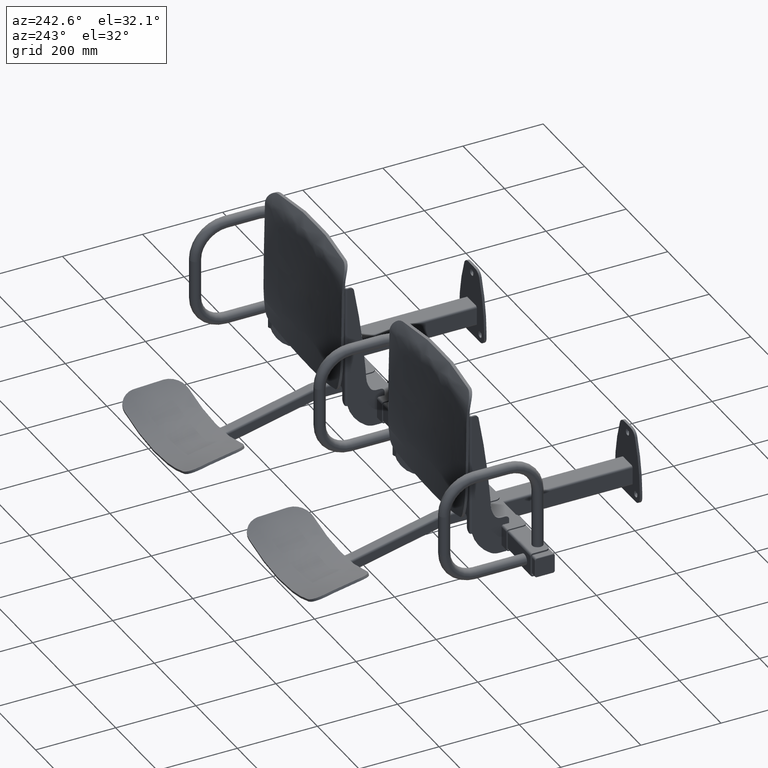
[diagram: clean part render]
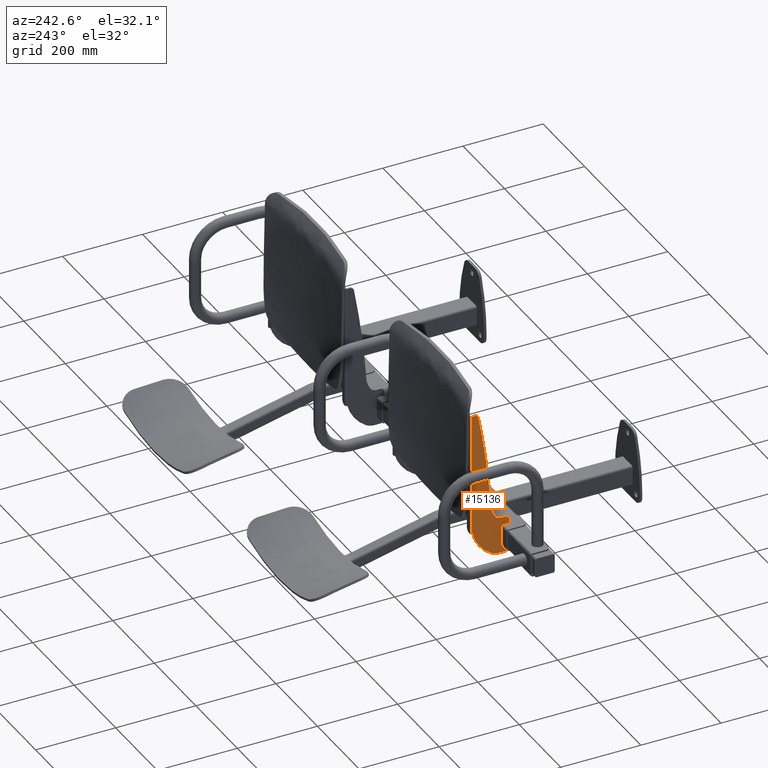
[diagram: same view with one face highlighted and labeled with its STEP entity id]
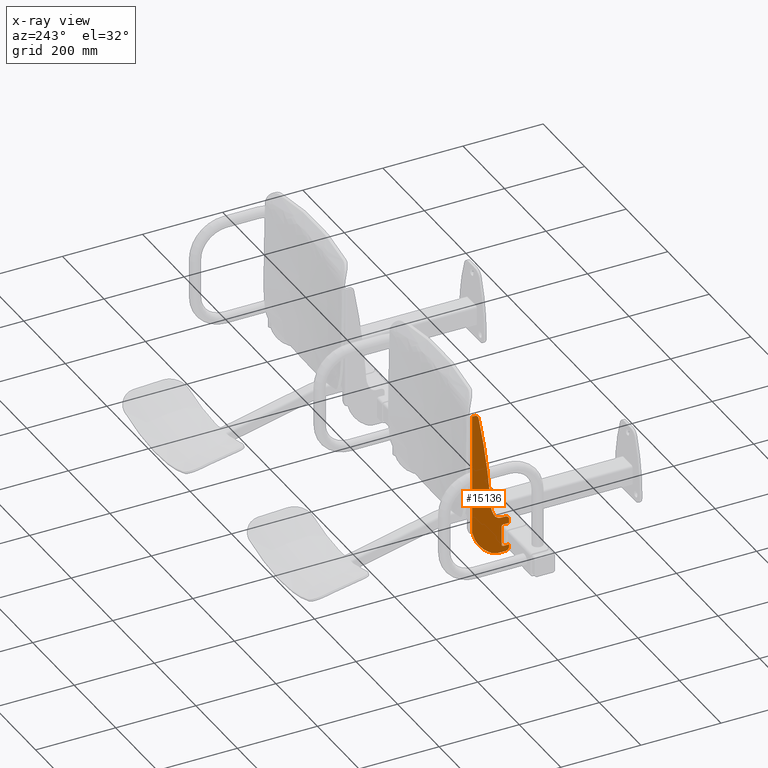
[diagram: x-ray of the same camera — body ghosted, the highlighted face saturated]
A machine part, auxiliary view. The second image highlights one B-rep face of the part: STEP entity #15136.
The next image is the same camera in x-ray: the body ghosted, the highlighted face saturated — about 0% of this face is hidden behind the body in this view.
In plain terms, the highlighted planar face has unit normal (-1, 0, 0).
Its self-contained STEP definition (entity closure, byte-faithful):
#186 = EDGE_LOOP ( 'NONE', ( #986, #988, #981, #984, #964, #966, #973, #975, #968, #971, #951, #953, #960, #962, #955, #958, #938, #940, #947, #949, #942 ) ) ;
#617 = VERTEX_POINT ( 'NONE', #13636 ) ;
#620 = VERTEX_POINT ( 'NONE', #13638 ) ;
#938 = ORIENTED_EDGE ( 'NONE', *, *, #1143, .T. ) ;
#940 = ORIENTED_EDGE ( 'NONE', *, *, #1146, .T. ) ;
#942 = ORIENTED_EDGE ( 'NONE', *, *, #1150, .T. ) ;
#947 = ORIENTED_EDGE ( 'NONE', *, *, #1092, .F. ) ;
#949 = ORIENTED_EDGE ( 'NONE', *, *, #1148, .T. ) ;
#951 = ORIENTED_EDGE ( 'NONE', *, *, #1129, .T. ) ;
#953 = ORIENTED_EDGE ( 'NONE', *, *, #1132, .T. ) ;
#955 = ORIENTED_EDGE ( 'NONE', *, *, #1139, .T. ) ;
#958 = ORIENTED_EDGE ( 'NONE', *, *, #1141, .T. ) ;
#960 = ORIENTED_EDGE ( 'NONE', *, *, #1134, .T. ) ;
#962 = ORIENTED_EDGE ( 'NONE', *, *, #1136, .T. ) ;
#964 = ORIENTED_EDGE ( 'NONE', *, *, #1115, .T. ) ;
#966 = ORIENTED_EDGE ( 'NONE', *, *, #1118, .T. ) ;
#968 = ORIENTED_EDGE ( 'NONE', *, *, #1125, .T. ) ;
#971 = ORIENTED_EDGE ( 'NONE', *, *, #1127, .T. ) ;
#973 = ORIENTED_EDGE ( 'NONE', *, *, #1120, .T. ) ;
#975 = ORIENTED_EDGE ( 'NONE', *, *, #1122, .T. ) ;
#981 = ORIENTED_EDGE ( 'NONE', *, *, #1111, .F. ) ;
#984 = ORIENTED_EDGE ( 'NONE', *, *, #1113, .T. ) ;
#986 = ORIENTED_EDGE ( 'NONE', *, *, #1106, .F. ) ;
#988 = ORIENTED_EDGE ( 'NONE', *, *, #1108, .T. ) ;
#1092 = EDGE_CURVE ( 'NONE', #7719, #7720, #15264, .T. ) ;
#1106 = EDGE_CURVE ( 'NONE', #7721, #7717, #15271, .T. ) ;
#1108 = EDGE_CURVE ( 'NONE', #7721, #7768, #15272, .T. ) ;
#1111 = EDGE_CURVE ( 'NONE', #7871, #7768, #15274, .T. ) ;
#1113 = EDGE_CURVE ( 'NONE', #7871, #617, #15276, .T. ) ;
#1115 = EDGE_CURVE ( 'NONE', #617, #620, #15280, .T. ) ;
#1118 = EDGE_CURVE ( 'NONE', #620, #7799, #15281, .T. ) ;
#1120 = EDGE_CURVE ( 'NONE', #7799, #7798, #15282, .T. ) ;
#1122 = EDGE_CURVE ( 'NONE', #7798, #7797, #15284, .T. ) ;
#1125 = EDGE_CURVE ( 'NONE', #7797, #7790, #15285, .T. ) ;
#1127 = EDGE_CURVE ( 'NONE', #7790, #7789, #15287, .T. ) ;
#1129 = EDGE_CURVE ( 'NONE', #7789, #7801, #15289, .T. ) ;
#1132 = EDGE_CURVE ( 'NONE', #7801, #7802, #15290, .T. ) ;
#1134 = EDGE_CURVE ( 'NONE', #7802, #7792, #15292, .T. ) ;
#1136 = EDGE_CURVE ( 'NONE', #7792, #7791, #15293, .T. ) ;
#1139 = EDGE_CURVE ( 'NONE', #7791, #7793, #15295, .T. ) ;
#1141 = EDGE_CURVE ( 'NONE', #7793, #7808, #15297, .T. ) ;
#1143 = EDGE_CURVE ( 'NONE', #7808, #7803, #15298, .T. ) ;
#1146 = EDGE_CURVE ( 'NONE', #7803, #7720, #15300, .T. ) ;
#1148 = EDGE_CURVE ( 'NONE', #7719, #7739, #15301, .T. ) ;
#1150 = EDGE_CURVE ( 'NONE', #7739, #7717, #15302, .T. ) ;
#1566 = AXIS2_PLACEMENT_3D ( 'NONE', #11931, #11932, #11933 ) ;
#1573 = AXIS2_PLACEMENT_3D ( 'NONE', #11952, #11953, #11954 ) ;
#1575 = AXIS2_PLACEMENT_3D ( 'NONE', #11957, #11958, #11959 ) ;
#1577 = AXIS2_PLACEMENT_3D ( 'NONE', #11962, #11963, #11964 ) ;
#1580 = AXIS2_PLACEMENT_3D ( 'NONE', #11969, #11970, #11971 ) ;
#1582 = AXIS2_PLACEMENT_3D ( 'NONE', #11974, #11975, #11976 ) ;
#1584 = AXIS2_PLACEMENT_3D ( 'NONE', #11979, #11980, #11981 ) ;
#1587 = AXIS2_PLACEMENT_3D ( 'NONE', #19611, #19612, #19613 ) ;
#1589 = AXIS2_PLACEMENT_3D ( 'NONE', #19614, #19615, #19616 ) ;
#1591 = AXIS2_PLACEMENT_3D ( 'NONE', #19619, #19620, #19621 ) ;
#1594 = AXIS2_PLACEMENT_3D ( 'NONE', #19622, #19623, #19624 ) ;
#7717 = VERTEX_POINT ( 'NONE', #16365 ) ;
#7719 = VERTEX_POINT ( 'NONE', #16367 ) ;
#7720 = VERTEX_POINT ( 'NONE', #16368 ) ;
#7721 = VERTEX_POINT ( 'NONE', #16369 ) ;
#7739 = VERTEX_POINT ( 'NONE', #16387 ) ;
#7768 = VERTEX_POINT ( 'NONE', #16416 ) ;
#7789 = VERTEX_POINT ( 'NONE', #16437 ) ;
#7790 = VERTEX_POINT ( 'NONE', #16438 ) ;
#7791 = VERTEX_POINT ( 'NONE', #16439 ) ;
#7792 = VERTEX_POINT ( 'NONE', #16440 ) ;
#7793 = VERTEX_POINT ( 'NONE', #16441 ) ;
#7797 = VERTEX_POINT ( 'NONE', #16445 ) ;
#7798 = VERTEX_POINT ( 'NONE', #16446 ) ;
#7799 = VERTEX_POINT ( 'NONE', #16447 ) ;
#7801 = VERTEX_POINT ( 'NONE', #16449 ) ;
#7802 = VERTEX_POINT ( 'NONE', #16450 ) ;
#7803 = VERTEX_POINT ( 'NONE', #16451 ) ;
#7808 = VERTEX_POINT ( 'NONE', #16456 ) ;
#7871 = VERTEX_POINT ( 'NONE', #16511 ) ;
#10130 = PLANE ( 'NONE',  #14544 ) ;
#10131 = CARTESIAN_POINT ( 'NONE',  ( -188.5000000000000000, 768.8487700016353300, 42.09000911109884400 ) ) ;
#10136 = DIRECTION ( 'NONE',  ( -1.000000000000000000, 0.0000000000000000000, 0.0000000000000000000 ) ) ;
#10137 = DIRECTION ( 'NONE',  ( 0.0000000000000000000, 0.0000000000000000000, 1.000000000000000000 ) ) ;
#11931 = CARTESIAN_POINT ( 'NONE',  ( -188.5000000000000000, 768.8487700016353300, 42.09000911109884400 ) ) ;
#11932 = DIRECTION ( 'NONE',  ( 1.000000000000000000, -0.0000000000000000000, -0.0000000000000000000 ) ) ;
#11933 = DIRECTION ( 'NONE',  ( 0.0000000000000000000, 0.0000000000000000000, 1.000000000000000000 ) ) ;
#11940 = CARTESIAN_POINT ( 'NONE',  ( -188.5000000000000000, 17.99999999999997200, 330.0000000000000000 ) ) ;
#11941 = CARTESIAN_POINT ( 'NONE',  ( -188.5000000000000000, 16.51392966436117100, 24.00000000000002100 ) ) ;
#11946 = CARTESIAN_POINT ( 'NONE',  ( -188.5000000000000000, -45.00000000000000000, 24.00000000000002100 ) ) ;
#11947 = DIRECTION ( 'NONE',  ( 0.0000000000000000000, -1.000000000000000000, 0.0000000000000000000 ) ) ;
#11948 = DIRECTION ( 'NONE',  ( -0.0000000000000000000, -0.0000000000000000000, -1.000000000000000000 ) ) ;
#11949 = DIRECTION ( 'NONE',  ( 0.0000000000000000000, 1.000000000000000000, 0.0000000000000000000 ) ) ;
#11950 = CARTESIAN_POINT ( 'NONE',  ( -188.5000000000000000, -76.00000000000000000, -45.49999999999999300 ) ) ;
#11951 = DIRECTION ( 'NONE',  ( -0.0000000000000000000, -1.000000000000000000, -0.0000000000000000000 ) ) ;
#11952 = CARTESIAN_POINT ( 'NONE',  ( -188.5000000000000000, -82.12806770468355900, 45.65087518438299700 ) ) ;
#11953 = DIRECTION ( 'NONE',  ( -1.000000000000000000, 0.0000000000000000000, 0.0000000000000000000 ) ) ;
#11954 = DIRECTION ( 'NONE',  ( 0.0000000000000000000, 0.0000000000000000000, 1.000000000000000000 ) ) ;
#11955 = CARTESIAN_POINT ( 'NONE',  ( -188.5000000000000000, -76.00000000000000000, -30.49999999999998900 ) ) ;
#11956 = DIRECTION ( 'NONE',  ( -0.0000000000000000000, -0.0000000000000000000, 1.000000000000000000 ) ) ;
#11957 = CARTESIAN_POINT ( 'NONE',  ( -188.5000000000000000, -50.76586166187400600, -5.499999999999991100 ) ) ;
#11958 = DIRECTION ( 'NONE',  ( -1.000000000000000000, 0.0000000000000000000, 0.0000000000000000000 ) ) ;
#11959 = DIRECTION ( 'NONE',  ( 0.0000000000000000000, 0.0000000000000000000, 1.000000000000000000 ) ) ;
#11960 = CARTESIAN_POINT ( 'NONE',  ( -188.5000000000000000, -57.00000000000000000, 25.50000000000000400 ) ) ;
#11961 = DIRECTION ( 'NONE',  ( -0.0000000000000000000, -0.0000000000000000000, 1.000000000000000000 ) ) ;
#11962 = CARTESIAN_POINT ( 'NONE',  ( -188.5000000000000000, -66.00000000000000000, -35.49999999999999300 ) ) ;
#11963 = DIRECTION ( 'NONE',  ( -1.000000000000000000, 0.0000000000000000000, 0.0000000000000000000 ) ) ;
#11964 = DIRECTION ( 'NONE',  ( 0.0000000000000000000, 0.0000000000000000000, 1.000000000000000000 ) ) ;
#11965 = CARTESIAN_POINT ( 'NONE',  ( -188.5000000000000000, -57.00000000000000000, -30.49999999999999600 ) ) ;
#11966 = DIRECTION ( 'NONE',  ( -0.0000000000000000000, 1.000000000000000000, -3.652049423109068300E-016 ) ) ;
#11967 = CARTESIAN_POINT ( 'NONE',  ( -188.5000000000000000, -75.99999999999998600, 25.50000000000000700 ) ) ;
#11968 = DIRECTION ( 'NONE',  ( -0.0000000000000000000, -1.000000000000000000, 1.826024711554535900E-016 ) ) ;
#11969 = CARTESIAN_POINT ( 'NONE',  ( -188.5000000000000000, -62.00000000000000000, -25.49999999999999300 ) ) ;
#11970 = DIRECTION ( 'NONE',  ( 1.000000000000000000, -0.0000000000000000000, -0.0000000000000000000 ) ) ;
#11971 = DIRECTION ( 'NONE',  ( 0.0000000000000000000, 0.0000000000000000000, 1.000000000000000000 ) ) ;
#11972 = CARTESIAN_POINT ( 'NONE',  ( -188.5000000000000000, -75.99999999999998600, 45.00000000000001400 ) ) ;
#11973 = DIRECTION ( 'NONE',  ( 0.0000000000000000000, 1.000000000000000000, 2.359788892426816400E-016 ) ) ;
#11974 = CARTESIAN_POINT ( 'NONE',  ( -188.5000000000000000, -62.00000000000000000, 20.50000000000000400 ) ) ;
#11975 = DIRECTION ( 'NONE',  ( 1.000000000000000000, -0.0000000000000000000, -0.0000000000000000000 ) ) ;
#11976 = DIRECTION ( 'NONE',  ( 0.0000000000000000000, 0.0000000000000000000, 1.000000000000000000 ) ) ;
#11977 = CARTESIAN_POINT ( 'NONE',  ( -188.5000000000000000, -75.99999999999998600, 25.50000000000000700 ) ) ;
#11978 = DIRECTION ( 'NONE',  ( 0.0000000000000000000, 0.0000000000000000000, 1.000000000000000000 ) ) ;
#11979 = CARTESIAN_POINT ( 'NONE',  ( -188.5000000000000000, -65.99999999999998600, 35.00000000000000700 ) ) ;
#11980 = DIRECTION ( 'NONE',  ( -1.000000000000000000, 0.0000000000000000000, 0.0000000000000000000 ) ) ;
#11981 = DIRECTION ( 'NONE',  ( 0.0000000000000000000, 0.0000000000000000000, 1.000000000000000000 ) ) ;
#13636 = CARTESIAN_POINT ( 'NONE',  ( -188.5000000000000000, -29.85772430000087500, -39.60058345625546400 ) ) ;
#13638 = CARTESIAN_POINT ( 'NONE',  ( -188.5000000000000000, -50.76586166187400600, -45.49999999999999300 ) ) ;
#14409 = FACE_OUTER_BOUND ( 'NONE', #186, .T. ) ;
#14544 = AXIS2_PLACEMENT_3D ( 'NONE', #10131, #10136, #10137 ) ;
#15136 = ADVANCED_FACE ( 'NONE', ( #14409 ), #10130, .T. ) ;
#15264 = CIRCLE ( 'NONE', #1566, 800.0000000000000000 ) ;
#15271 = LINE ( 'NONE', #11940, #15275 ) ;
#15272 = LINE ( 'NONE', #11941, #15277 ) ;
#15274 = LINE ( 'NONE', #11946, #15279 ) ;
#15275 = VECTOR ( 'NONE', #11947, 1000.000000000000000 ) ;
#15276 = CIRCLE ( 'NONE', #1573, 99.99999999999973000 ) ;
#15277 = VECTOR ( 'NONE', #11948, 1000.000000000000000 ) ;
#15279 = VECTOR ( 'NONE', #11949, 1000.000000000000000 ) ;
#15280 = CIRCLE ( 'NONE', #1575, 40.00000000000000000 ) ;
#15281 = LINE ( 'NONE', #11950, #15283 ) ;
#15282 = CIRCLE ( 'NONE', #1577, 10.00000000000000200 ) ;
#15283 = VECTOR ( 'NONE', #11951, 1000.000000000000000 ) ;
#15284 = LINE ( 'NONE', #11955, #15286 ) ;
#15285 = LINE ( 'NONE', #11965, #15288 ) ;
#15286 = VECTOR ( 'NONE', #11956, 1000.000000000000000 ) ;
#15287 = CIRCLE ( 'NONE', #1580, 5.000000000000000900 ) ;
#15288 = VECTOR ( 'NONE', #11966, 1000.000000000000000 ) ;
#15289 = LINE ( 'NONE', #11960, #15291 ) ;
#15290 = CIRCLE ( 'NONE', #1582, 5.000000000000000900 ) ;
#15291 = VECTOR ( 'NONE', #11961, 1000.000000000000000 ) ;
#15292 = LINE ( 'NONE', #11967, #15294 ) ;
#15293 = LINE ( 'NONE', #11977, #15296 ) ;
#15294 = VECTOR ( 'NONE', #11968, 1000.000000000000000 ) ;
#15295 = CIRCLE ( 'NONE', #1584, 10.00000000000000200 ) ;
#15296 = VECTOR ( 'NONE', #11978, 1000.000000000000000 ) ;
#15297 = LINE ( 'NONE', #11972, #15299 ) ;
#15298 = CIRCLE ( 'NONE', #1587, 20.00000000000000400 ) ;
#15299 = VECTOR ( 'NONE', #11973, 1000.000000000000000 ) ;
#15300 = CIRCLE ( 'NONE', #1589, 64.99999999999991500 ) ;
#15301 = CIRCLE ( 'NONE', #1591, 2000.000000000000000 ) ;
#15302 = CIRCLE ( 'NONE', #1594, 10.00000000000000900 ) ;
#16365 = CARTESIAN_POINT ( 'NONE',  ( -188.5000000000000000, 10.25815059093826400, 330.0000000000000000 ) ) ;
#16367 = CARTESIAN_POINT ( 'NONE',  ( -188.5000000000000000, -28.67664571090134000, 104.9645770423940000 ) ) ;
#16368 = CARTESIAN_POINT ( 'NONE',  ( -188.5000000000000000, -29.99960903027743000, 85.00000000000001400 ) ) ;
#16369 = CARTESIAN_POINT ( 'NONE',  ( -188.5000000000000000, 16.51392966436117100, 330.0000000000000000 ) ) ;
#16387 = CARTESIAN_POINT ( 'NONE',  ( -188.5000000000000000, 0.4346393196845710300, 321.8704615215368700 ) ) ;
#16416 = CARTESIAN_POINT ( 'NONE',  ( -188.5000000000000000, 16.51392966436117500, 24.00000000000002100 ) ) ;
#16437 = CARTESIAN_POINT ( 'NONE',  ( -188.5000000000000000, -57.00000000000000000, -25.49999999999999300 ) ) ;
#16438 = CARTESIAN_POINT ( 'NONE',  ( -188.5000000000000000, -62.00000000000000000, -30.49999999999999300 ) ) ;
#16439 = CARTESIAN_POINT ( 'NONE',  ( -188.5000000000000000, -75.99999999999998600, 35.00000000000000700 ) ) ;
#16440 = CARTESIAN_POINT ( 'NONE',  ( -188.5000000000000000, -75.99999999999998600, 25.50000000000000700 ) ) ;
#16441 = CARTESIAN_POINT ( 'NONE',  ( -188.5000000000000000, -65.99999999999998600, 45.00000000000001400 ) ) ;
#16445 = CARTESIAN_POINT ( 'NONE',  ( -188.5000000000000000, -76.00000000000000000, -30.49999999999998900 ) ) ;
#16446 = CARTESIAN_POINT ( 'NONE',  ( -188.5000000000000000, -76.00000000000000000, -35.49999999999999300 ) ) ;
#16447 = CARTESIAN_POINT ( 'NONE',  ( -188.5000000000000000, -66.00000000000000000, -45.49999999999999300 ) ) ;
#16449 = CARTESIAN_POINT ( 'NONE',  ( -188.5000000000000000, -57.00000000000000000, 20.50000000000000400 ) ) ;
#16450 = CARTESIAN_POINT ( 'NONE',  ( -188.5000000000000000, -62.00000000000000000, 25.50000000000000400 ) ) ;
#16451 = CARTESIAN_POINT ( 'NONE',  ( -188.5000000000000000, -39.46143375604454200, 54.56158366234524200 ) ) ;
#16456 = CARTESIAN_POINT ( 'NONE',  ( -188.5000000000000000, -56.52131254699092000, 45.00000000000002100 ) ) ;
#16511 = CARTESIAN_POINT ( 'NONE',  ( -188.5000000000000000, 15.49999999999939600, 24.00000000000002100 ) ) ;
#19611 = CARTESIAN_POINT ( 'NONE',  ( -188.5000000000000000, -56.52131254699092700, 65.00000000000002800 ) ) ;
#19612 = DIRECTION ( 'NONE',  ( 1.000000000000000000, -0.0000000000000000000, -0.0000000000000000000 ) ) ;
#19613 = DIRECTION ( 'NONE',  ( 0.0000000000000000000, -1.734723475976806700E-015, 1.000000000000000000 ) ) ;
#19614 = CARTESIAN_POINT ( 'NONE',  ( -188.5000000000000000, -94.90603982662018700, 88.48643675972323300 ) ) ;
#19615 = DIRECTION ( 'NONE',  ( 1.000000000000000000, 0.0000000000000000000, 0.0000000000000000000 ) ) ;
#19616 = DIRECTION ( 'NONE',  ( 0.0000000000000000000, 0.0000000000000000000, -1.000000000000000000 ) ) ;
#19619 = CARTESIAN_POINT ( 'NONE',  ( -188.5000000000000000, 1965.136893570438600, -52.22184278584374100 ) ) ;
#19620 = DIRECTION ( 'NONE',  ( -1.000000000000000000, -0.0000000000000000000, -0.0000000000000000000 ) ) ;
#19621 = DIRECTION ( 'NONE',  ( 0.0000000000000000000, 0.0000000000000000000, -1.000000000000000000 ) ) ;
#19622 = CARTESIAN_POINT ( 'NONE',  ( -188.5000000000000000, 10.25815059093826400, 320.0000000000000000 ) ) ;
#19623 = DIRECTION ( 'NONE',  ( -1.000000000000000000, 0.0000000000000000000, 0.0000000000000000000 ) ) ;
#19624 = DIRECTION ( 'NONE',  ( 0.0000000000000000000, 0.0000000000000000000, 1.000000000000000000 ) ) ;